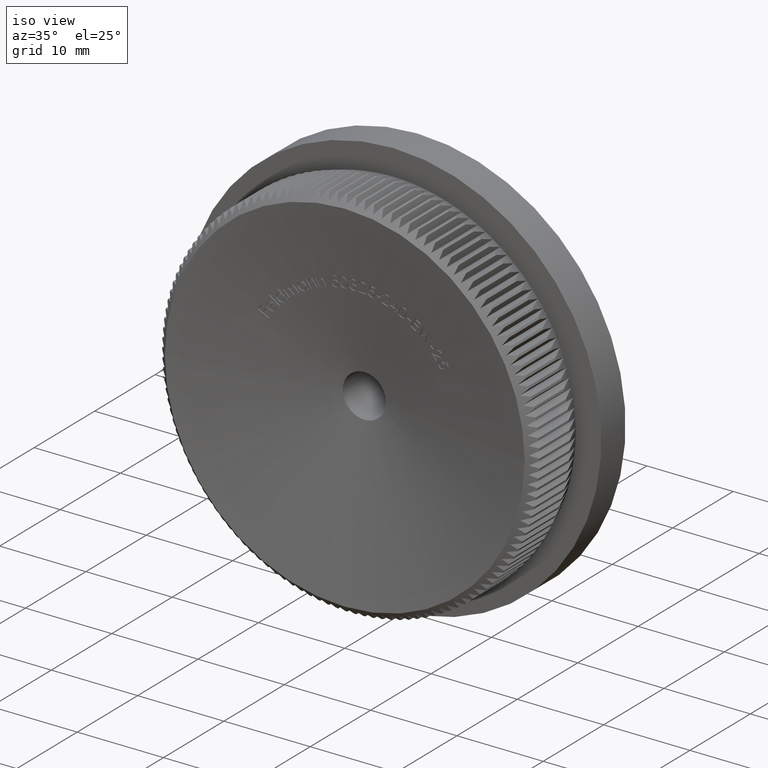
[diagram: clean part render]
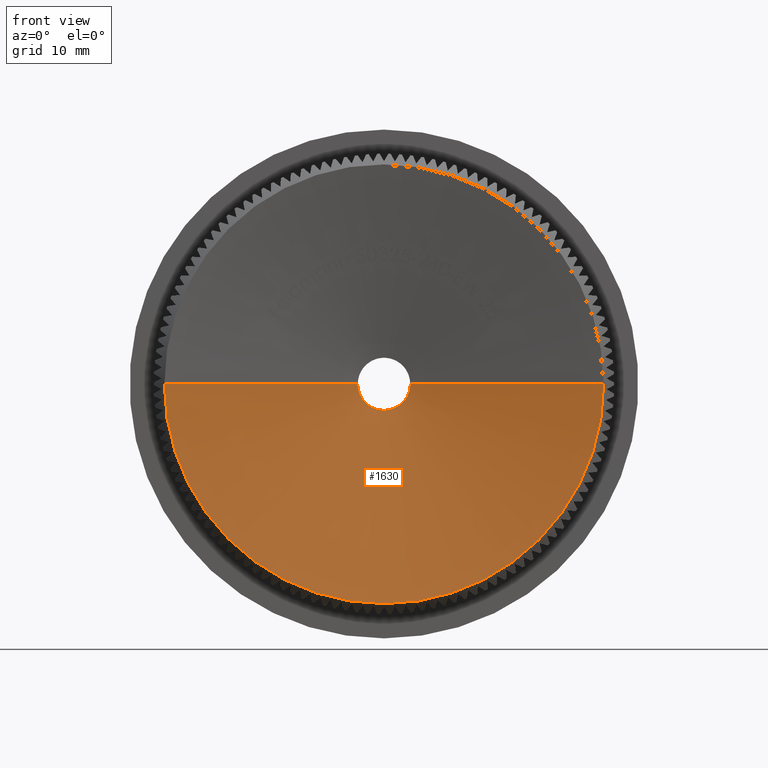
[diagram: tour spotlight — one face highlighted and labeled with its STEP entity id]
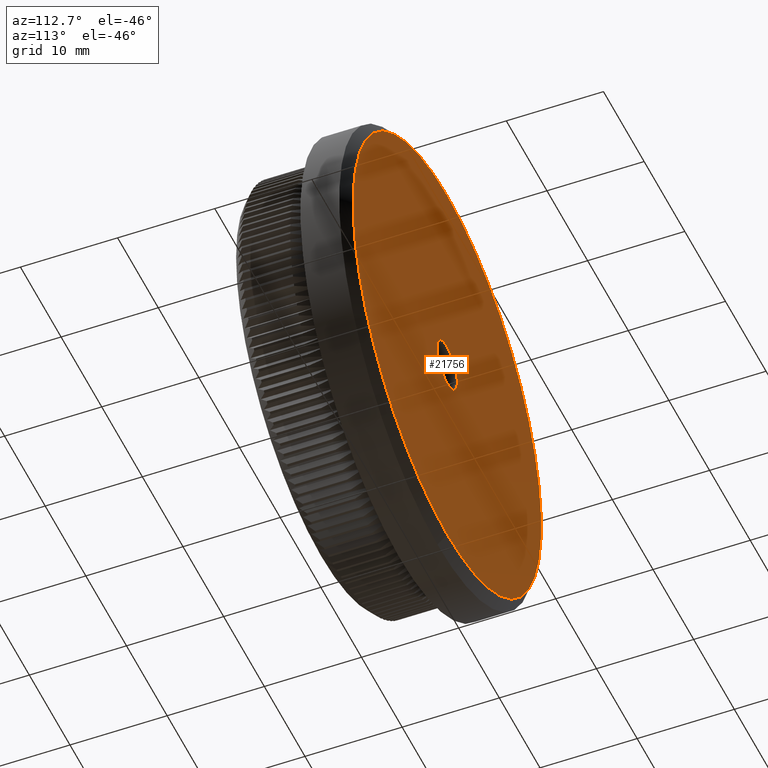
[diagram: tour spotlight — one face highlighted and labeled with its STEP entity id]
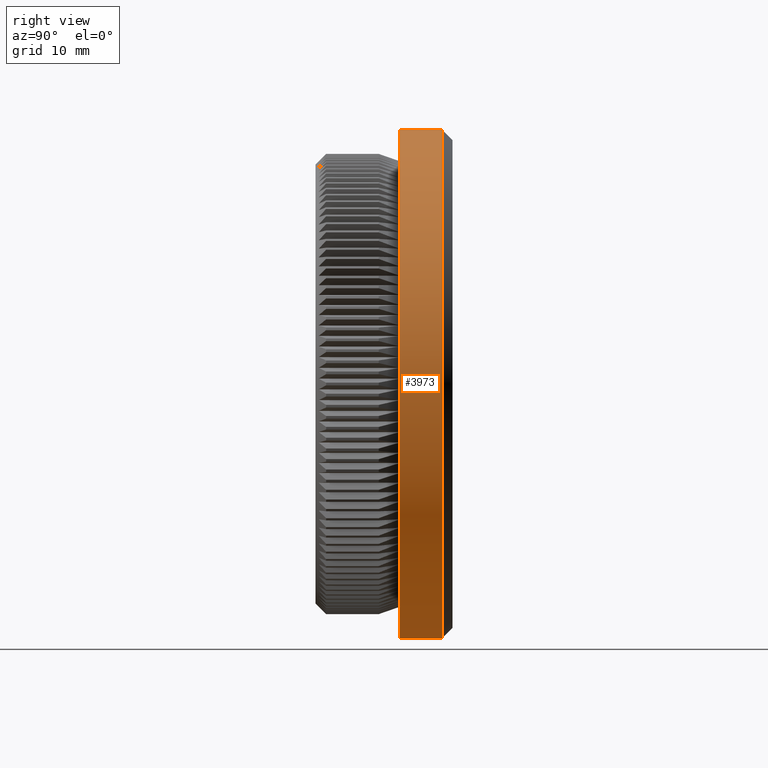
[diagram: tour spotlight — one face highlighted and labeled with its STEP entity id]
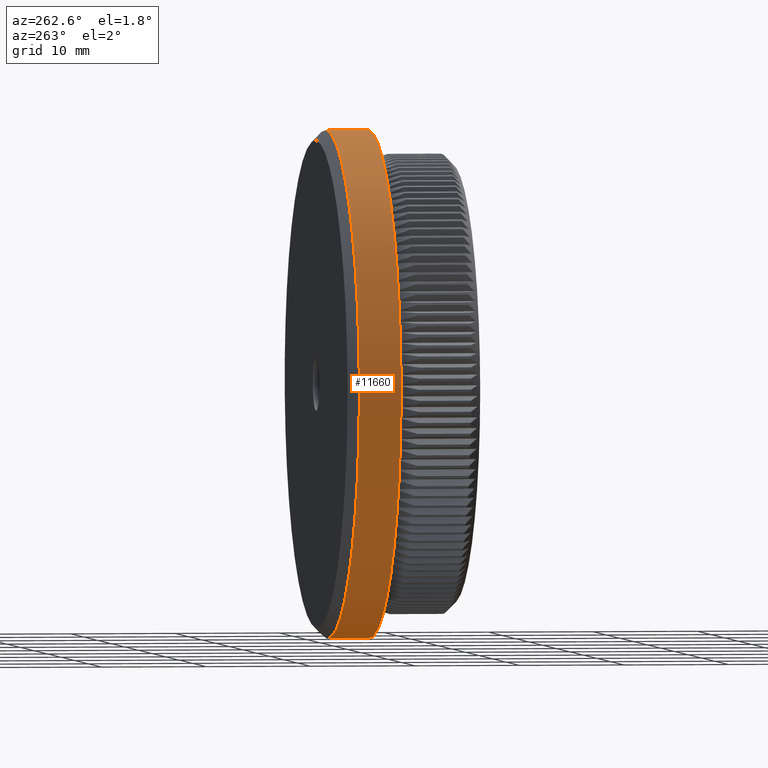
[diagram: tour spotlight — one face highlighted and labeled with its STEP entity id]
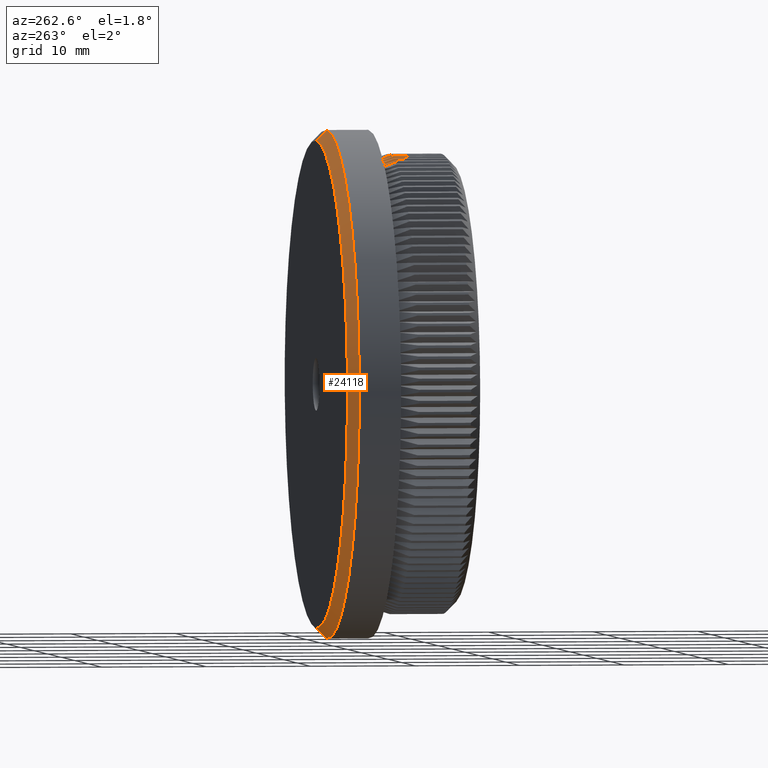
[diagram: tour spotlight — one face highlighted and labeled with its STEP entity id]
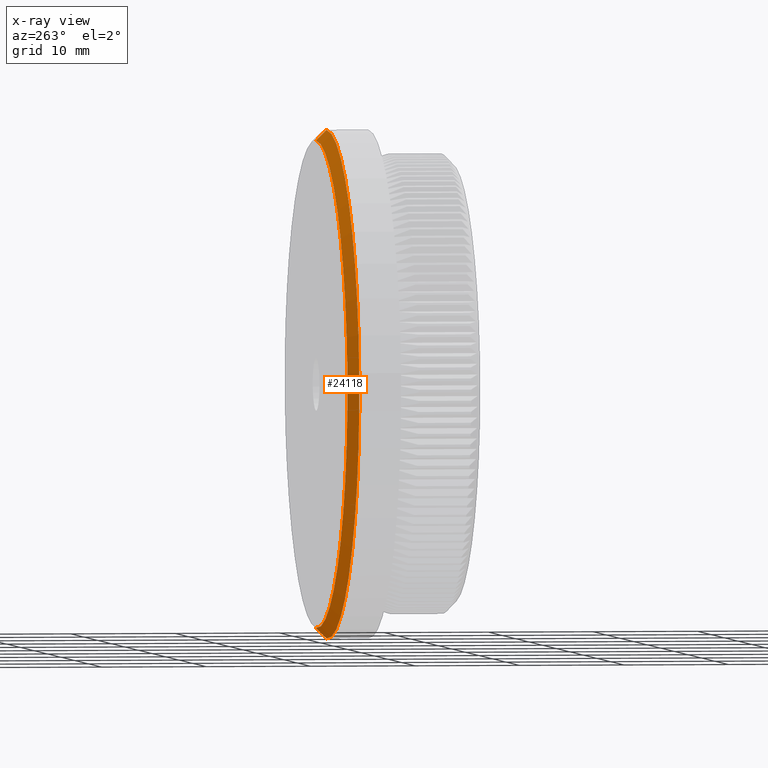
[diagram: x-ray of the same camera — body ghosted, this tour face saturated]
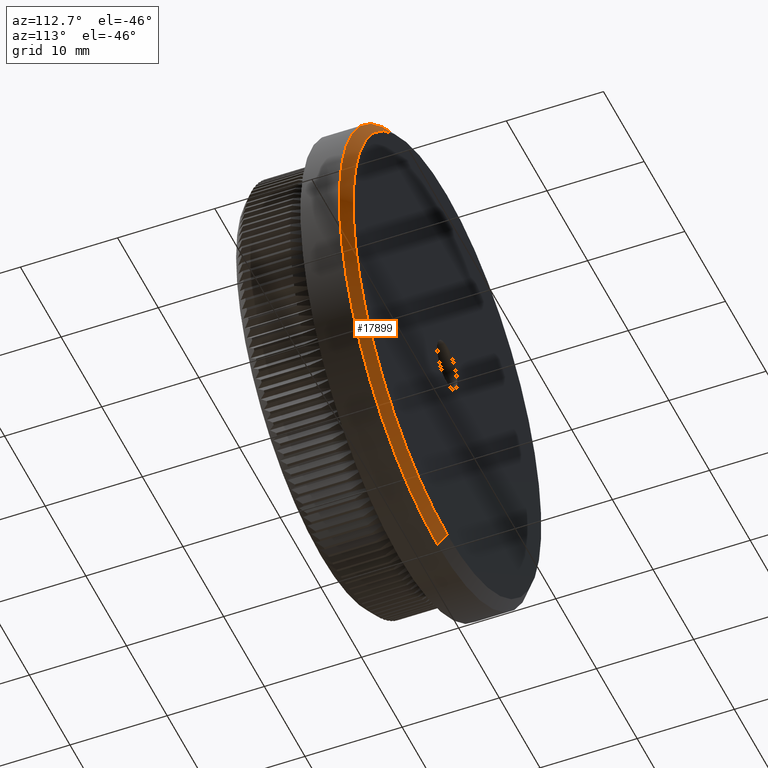
[diagram: tour spotlight — one face highlighted and labeled with its STEP entity id]
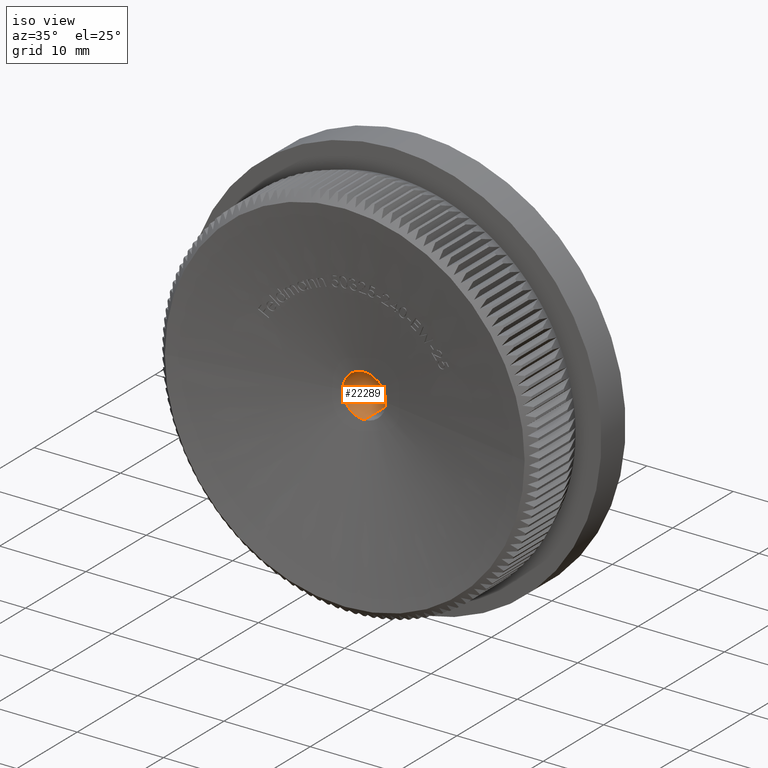
[diagram: tour spotlight — one face highlighted and labeled with its STEP entity id]
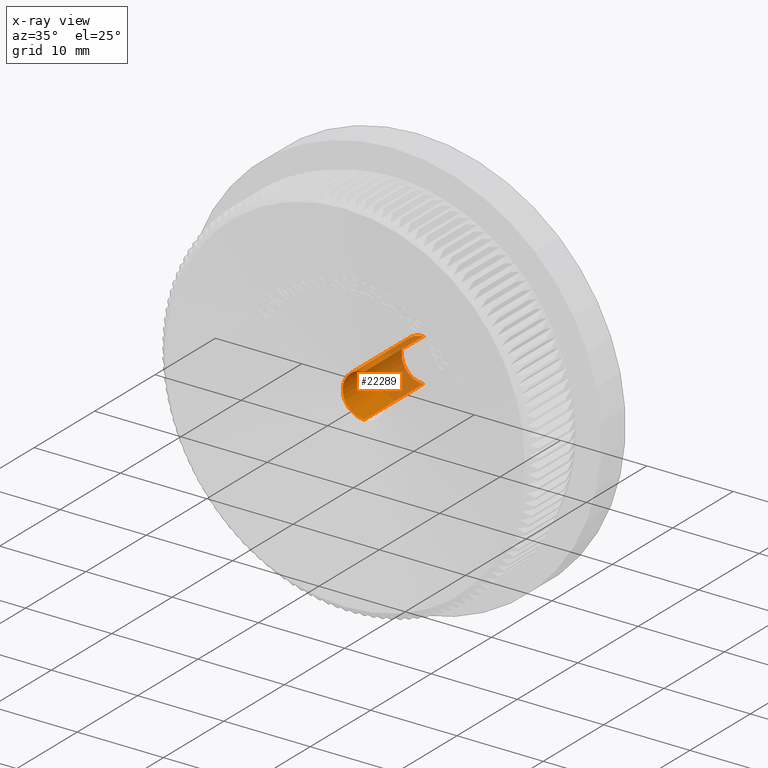
[diagram: x-ray of the same camera — body ghosted, this tour face saturated]
A machine part: a face-by-face anatomy tour. The part has 826 B-rep faces; the first image is the clean iso view, then the 7 largest visible faces are spotlighted one at a time (largest first), each with its STEP entity span.

Face 1 — front view, entity #1630. In plain terms, the highlighted conical surface has half-angle 80 deg.
Definition (entity closure, byte-faithful):
#1630 = ADVANCED_FACE ( 'NONE', ( #26621 ), #3690, .F. ) ;
#2535 = CARTESIAN_POINT ( 'NONE',  ( 1.776208359304720700E-033, 1.777418612876367700E-016, 0.0000000000000000000 ) ) ;
#2646 = DIRECTION ( 'NONE',  ( 1.000000000000000000, 0.0000000000000000000, 0.0000000000000000000 ) ) ;
#2802 = EDGE_CURVE ( 'NONE', #23438, #13845, #30609, .T. ) ;
#3690 = CONICAL_SURFACE ( 'NONE', #16309, 20.85000000000000100, 1.396263401595470700 ) ;
#4029 = DIRECTION ( 'NONE',  ( 0.9848077530122093500, -0.1736481776669234500, 0.0000000000000000000 ) ) ;
#4052 = CARTESIAN_POINT ( 'NONE',  ( -20.85000000000000100, 3.860998925539573200E-016, 2.553388576222231200E-015 ) ) ;
#4108 = EDGE_CURVE ( 'NONE', #7631, #13845, #23948, .T. ) ;
#4221 = LINE ( 'NONE', #4052, #19722 ) ;
#4229 = VERTEX_POINT ( 'NONE', #12942 ) ;
#5029 = CARTESIAN_POINT ( 'NONE',  ( 3.233396959077790000E-017, 3.235600096000199600, 0.0000000000000000000 ) ) ;
#5161 = CARTESIAN_POINT ( 'NONE',  ( -2.500000000000000000, 3.235600096000199600, 1.429775138004535100E-015 ) ) ;
#5622 = EDGE_LOOP ( 'NONE', ( #19343, #26536, #6200, #5984, #26006, #7048 ) ) ;
#5984 = ORIENTED_EDGE ( 'NONE', *, *, #30418, .T. ) ;
#6200 = ORIENTED_EDGE ( 'NONE', *, *, #22322, .T. ) ;
#7048 = ORIENTED_EDGE ( 'NONE', *, *, #2802, .F. ) ;
#7212 = CARTESIAN_POINT ( 'NONE',  ( 20.85000000000000100, -3.061616997868376200E-017, 0.0000000000000000000 ) ) ;
#7631 = VERTEX_POINT ( 'NONE', #11658 ) ;
#10499 = DIRECTION ( 'NONE',  ( 1.000000000000000000, -9.993190948024965400E-018, 0.0000000000000000000 ) ) ;
#11658 = CARTESIAN_POINT ( 'NONE',  ( 2.614620916179599600E-015, 1.777418612876367200E-016, -20.85000000000000100 ) ) ;
#12942 = CARTESIAN_POINT ( 'NONE',  ( -20.85000000000000100, 3.860998925539573200E-016, 2.553388576222231200E-015 ) ) ;
#12983 = AXIS2_PLACEMENT_3D ( 'NONE', #13977, #14267, #16443 ) ;
#13155 = DIRECTION ( 'NONE',  ( -9.993190948024965400E-018, -1.000000000000000000, -0.0000000000000000000 ) ) ;
#13845 = VERTEX_POINT ( 'NONE', #7212 ) ;
#13977 = CARTESIAN_POINT ( 'NONE',  ( 1.776208359304720700E-033, 1.777418612876367700E-016, 0.0000000000000000000 ) ) ;
#14267 = DIRECTION ( 'NONE',  ( -9.993190948024965400E-018, -1.000000000000000000, -0.0000000000000000000 ) ) ;
#15423 = CARTESIAN_POINT ( 'NONE',  ( 1.776208359304720700E-033, 1.777418612876367700E-016, 0.0000000000000000000 ) ) ;
#16309 = AXIS2_PLACEMENT_3D ( 'NONE', #15423, #13155, #10499 ) ;
#16443 = DIRECTION ( 'NONE',  ( 1.000000000000000000, -9.993190948024965400E-018, 0.0000000000000000000 ) ) ;
#17656 = CARTESIAN_POINT ( 'NONE',  ( 20.85000000000000100, -3.061616997868376200E-017, 0.0000000000000000000 ) ) ;
#17806 = VERTEX_POINT ( 'NONE', #21276 ) ;
#18351 = VERTEX_POINT ( 'NONE', #5161 ) ;
#19052 = DIRECTION ( 'NONE',  ( 1.000000000000000000, 0.0000000000000000000, 0.0000000000000000000 ) ) ;
#19343 = ORIENTED_EDGE ( 'NONE', *, *, #29610, .T. ) ;
#19722 = VECTOR ( 'NONE', #22937, 999.9999999999998900 ) ;
#20314 = EDGE_CURVE ( 'NONE', #17806, #18351, #30483, .T. ) ;
#20665 = AXIS2_PLACEMENT_3D ( 'NONE', #2535, #26262, #28618 ) ;
#20801 = CARTESIAN_POINT ( 'NONE',  ( 3.233396959077790000E-017, 3.235600096000199600, 0.0000000000000000000 ) ) ;
#21276 = CARTESIAN_POINT ( 'NONE',  ( 3.061616997868382600E-016, 3.235600096000199600, -2.500000000000000000 ) ) ;
#21640 = AXIS2_PLACEMENT_3D ( 'NONE', #20801, #23198, #19052 ) ;
#22322 = EDGE_CURVE ( 'NONE', #18351, #4229, #4221, .T. ) ;
#22937 = DIRECTION ( 'NONE',  ( -0.9848077530122093500, -0.1736481776669234500, 1.206041662501899300E-016 ) ) ;
#23198 = DIRECTION ( 'NONE',  ( 9.993190948024965400E-018, 1.000000000000000000, 0.0000000000000000000 ) ) ;
#23438 = VERTEX_POINT ( 'NONE', #25589 ) ;
#23556 = CIRCLE ( 'NONE', #21640, 2.500000000000000000 ) ;
#23900 = DIRECTION ( 'NONE',  ( 9.993190948024965400E-018, 1.000000000000000000, 0.0000000000000000000 ) ) ;
#23948 = CIRCLE ( 'NONE', #20665, 20.85000000000000100 ) ;
#24348 = VECTOR ( 'NONE', #4029, 999.9999999999998900 ) ;
#25589 = CARTESIAN_POINT ( 'NONE',  ( 2.500000000000000000, 3.235600096000199600, 0.0000000000000000000 ) ) ;
#26006 = ORIENTED_EDGE ( 'NONE', *, *, #4108, .T. ) ;
#26262 = DIRECTION ( 'NONE',  ( -9.993190948024965400E-018, -1.000000000000000000, -0.0000000000000000000 ) ) ;
#26306 = AXIS2_PLACEMENT_3D ( 'NONE', #5029, #23900, #2646 ) ;
#26536 = ORIENTED_EDGE ( 'NONE', *, *, #20314, .T. ) ;
#26621 = FACE_OUTER_BOUND ( 'NONE', #5622, .T. ) ;
#28618 = DIRECTION ( 'NONE',  ( 1.000000000000000000, -9.993190948024965400E-018, 0.0000000000000000000 ) ) ;
#28701 = CIRCLE ( 'NONE', #12983, 20.85000000000000100 ) ;
#29610 = EDGE_CURVE ( 'NONE', #23438, #17806, #23556, .T. ) ;
#30418 = EDGE_CURVE ( 'NONE', #4229, #7631, #28701, .T. ) ;
#30483 = CIRCLE ( 'NONE', #26306, 2.500000000000000000 ) ;
#30609 = LINE ( 'NONE', #17656, #24348 ) ;

Face 2 — auxiliary view, entity #21756. In plain terms, the highlighted planar face has unit normal (0, 1, 0).
Definition (entity closure, byte-faithful):
#541 = CARTESIAN_POINT ( 'NONE',  ( 0.0000000000000000000, 13.00000000000000000, 2.500000000000000000 ) ) ;
#1626 = CARTESIAN_POINT ( 'NONE',  ( 0.0000000000000000000, 13.00000000000000000, 0.0000000000000000000 ) ) ;
#2245 = EDGE_LOOP ( 'NONE', ( #17589, #28679 ) ) ;
#3957 = AXIS2_PLACEMENT_3D ( 'NONE', #1626, #25058, #25373 ) ;
#3977 = CARTESIAN_POINT ( 'NONE',  ( 0.0000000000000000000, 13.00000000000000000, 0.0000000000000000000 ) ) ;
#4023 = VERTEX_POINT ( 'NONE', #541 ) ;
#4251 = FACE_OUTER_BOUND ( 'NONE', #21339, .T. ) ;
#4469 = CIRCLE ( 'NONE', #8414, 23.14999999999999900 ) ;
#4847 = CIRCLE ( 'NONE', #19183, 2.500000000000000000 ) ;
#8414 = AXIS2_PLACEMENT_3D ( 'NONE', #9295, #9810, #28664 ) ;
#9295 = CARTESIAN_POINT ( 'NONE',  ( 0.0000000000000000000, 13.00000000000000000, 0.0000000000000000000 ) ) ;
#9810 = DIRECTION ( 'NONE',  ( 0.0000000000000000000, 1.000000000000000000, 0.0000000000000000000 ) ) ;
#10733 = CARTESIAN_POINT ( 'NONE',  ( 3.061616997868382600E-016, 13.00000000000000000, -2.500000000000000000 ) ) ;
#11772 = VERTEX_POINT ( 'NONE', #22528 ) ;
#11861 = DIRECTION ( 'NONE',  ( 0.0000000000000000000, 0.0000000000000000000, 1.000000000000000000 ) ) ;
#12144 = VERTEX_POINT ( 'NONE', #27443 ) ;
#12965 = DIRECTION ( 'NONE',  ( 0.0000000000000000000, 0.0000000000000000000, 1.000000000000000000 ) ) ;
#13297 = PLANE ( 'NONE',  #3957 ) ;
#14058 = EDGE_CURVE ( 'NONE', #11772, #12144, #4469, .T. ) ;
#14208 = CARTESIAN_POINT ( 'NONE',  ( 0.0000000000000000000, 13.00000000000000000, 0.0000000000000000000 ) ) ;
#14378 = ORIENTED_EDGE ( 'NONE', *, *, #18848, .T. ) ;
#14465 = EDGE_CURVE ( 'NONE', #20809, #4023, #15903, .T. ) ;
#15903 = CIRCLE ( 'NONE', #20845, 2.500000000000000000 ) ;
#17163 = AXIS2_PLACEMENT_3D ( 'NONE', #14208, #26071, #11861 ) ;
#17469 = ORIENTED_EDGE ( 'NONE', *, *, #14058, .T. ) ;
#17589 = ORIENTED_EDGE ( 'NONE', *, *, #25727, .F. ) ;
#18230 = DIRECTION ( 'NONE',  ( 0.0000000000000000000, 1.000000000000000000, 0.0000000000000000000 ) ) ;
#18432 = CARTESIAN_POINT ( 'NONE',  ( 0.0000000000000000000, 13.00000000000000000, 0.0000000000000000000 ) ) ;
#18848 = EDGE_CURVE ( 'NONE', #12144, #11772, #27335, .T. ) ;
#19183 = AXIS2_PLACEMENT_3D ( 'NONE', #18432, #18230, #20491 ) ;
#19361 = FACE_BOUND ( 'NONE', #2245, .T. ) ;
#19860 = DIRECTION ( 'NONE',  ( 0.0000000000000000000, 1.000000000000000000, 0.0000000000000000000 ) ) ;
#20491 = DIRECTION ( 'NONE',  ( 0.0000000000000000000, 0.0000000000000000000, 1.000000000000000000 ) ) ;
#20809 = VERTEX_POINT ( 'NONE', #10733 ) ;
#20845 = AXIS2_PLACEMENT_3D ( 'NONE', #3977, #19860, #12965 ) ;
#21339 = EDGE_LOOP ( 'NONE', ( #14378, #17469 ) ) ;
#21756 = ADVANCED_FACE ( 'NONE', ( #19361, #4251 ), #13297, .T. ) ;
#22528 = CARTESIAN_POINT ( 'NONE',  ( 2.896289679983490000E-015, 13.00000000000000000, 23.14999999999999900 ) ) ;
#25058 = DIRECTION ( 'NONE',  ( 0.0000000000000000000, 1.000000000000000000, 0.0000000000000000000 ) ) ;
#25373 = DIRECTION ( 'NONE',  ( 0.0000000000000000000, -0.0000000000000000000, 1.000000000000000000 ) ) ;
#25727 = EDGE_CURVE ( 'NONE', #4023, #20809, #4847, .T. ) ;
#26071 = DIRECTION ( 'NONE',  ( 0.0000000000000000000, 1.000000000000000000, 0.0000000000000000000 ) ) ;
#27335 = CIRCLE ( 'NONE', #17163, 23.14999999999999900 ) ;
#27443 = CARTESIAN_POINT ( 'NONE',  ( 0.0000000000000000000, 13.00000000000000000, -23.14999999999999900 ) ) ;
#28664 = DIRECTION ( 'NONE',  ( 0.0000000000000000000, 0.0000000000000000000, 1.000000000000000000 ) ) ;
#28679 = ORIENTED_EDGE ( 'NONE', *, *, #14465, .F. ) ;

Face 3 — right view, entity #3973. In plain terms, the highlighted cylindrical surface (partial cylindrical patch) has radius 24.15 mm, axis along (-0, -1, -0).
Definition (entity closure, byte-faithful):
#9 = DIRECTION ( 'NONE',  ( -0.0000000000000000000, -1.000000000000000000, -0.0000000000000000000 ) ) ;
#656 = CYLINDRICAL_SURFACE ( 'NONE', #19674, 24.14999999999999900 ) ;
#2111 = DIRECTION ( 'NONE',  ( 0.0000000000000000000, 0.0000000000000000000, -1.000000000000000000 ) ) ;
#2720 = VERTEX_POINT ( 'NONE', #25543 ) ;
#3568 = CARTESIAN_POINT ( 'NONE',  ( 0.0000000000000000000, 8.000000000000000000, 0.0000000000000000000 ) ) ;
#3645 = VECTOR ( 'NONE', #18437, 1000.000000000000000 ) ;
#3973 = ADVANCED_FACE ( 'NONE', ( #25447 ), #656, .T. ) ;
#7068 = CARTESIAN_POINT ( 'NONE',  ( 0.0000000000000000000, 11.99999999999999500, 0.0000000000000000000 ) ) ;
#8980 = EDGE_CURVE ( 'NONE', #2720, #12464, #25625, .T. ) ;
#11461 = CARTESIAN_POINT ( 'NONE',  ( 0.0000000000000000000, 0.0000000000000000000, -24.14999999999999900 ) ) ;
#12464 = VERTEX_POINT ( 'NONE', #21810 ) ;
#12666 = AXIS2_PLACEMENT_3D ( 'NONE', #7068, #9, #21579 ) ;
#12718 = AXIS2_PLACEMENT_3D ( 'NONE', #3568, #15737, #20262 ) ;
#13002 = CIRCLE ( 'NONE', #12718, 24.14999999999999900 ) ;
#15737 = DIRECTION ( 'NONE',  ( -0.0000000000000000000, -1.000000000000000000, -0.0000000000000000000 ) ) ;
#16465 = CIRCLE ( 'NONE', #12666, 24.14999999999999900 ) ;
#16546 = EDGE_CURVE ( 'NONE', #18240, #18523, #16950, .T. ) ;
#16950 = LINE ( 'NONE', #11461, #3645 ) ;
#18240 = VERTEX_POINT ( 'NONE', #28473 ) ;
#18437 = DIRECTION ( 'NONE',  ( -0.0000000000000000000, -1.000000000000000000, -0.0000000000000000000 ) ) ;
#18523 = VERTEX_POINT ( 'NONE', #20085 ) ;
#19273 = ORIENTED_EDGE ( 'NONE', *, *, #20681, .T. ) ;
#19482 = EDGE_LOOP ( 'NONE', ( #19273, #20294, #28549, #28186 ) ) ;
#19674 = AXIS2_PLACEMENT_3D ( 'NONE', #25654, #30355, #2111 ) ;
#20085 = CARTESIAN_POINT ( 'NONE',  ( 0.0000000000000000000, 8.000000000000000000, -24.14999999999999900 ) ) ;
#20262 = DIRECTION ( 'NONE',  ( 0.0000000000000000000, 0.0000000000000000000, -1.000000000000000000 ) ) ;
#20285 = DIRECTION ( 'NONE',  ( -0.0000000000000000000, -1.000000000000000000, -0.0000000000000000000 ) ) ;
#20294 = ORIENTED_EDGE ( 'NONE', *, *, #8980, .T. ) ;
#20598 = CARTESIAN_POINT ( 'NONE',  ( 2.957522019940857900E-015, 0.0000000000000000000, 24.14999999999999900 ) ) ;
#20681 = EDGE_CURVE ( 'NONE', #18240, #2720, #16465, .T. ) ;
#21579 = DIRECTION ( 'NONE',  ( 0.0000000000000000000, 0.0000000000000000000, 1.000000000000000000 ) ) ;
#21810 = CARTESIAN_POINT ( 'NONE',  ( 2.957522019940857900E-015, 8.000000000000000000, 24.14999999999999900 ) ) ;
#24522 = VECTOR ( 'NONE', #20285, 1000.000000000000000 ) ;
#25447 = FACE_OUTER_BOUND ( 'NONE', #19482, .T. ) ;
#25543 = CARTESIAN_POINT ( 'NONE',  ( 2.957522019940857900E-015, 11.99999999999999500, 24.14999999999999900 ) ) ;
#25625 = LINE ( 'NONE', #20598, #24522 ) ;
#25654 = CARTESIAN_POINT ( 'NONE',  ( 0.0000000000000000000, 0.0000000000000000000, 0.0000000000000000000 ) ) ;
#25960 = EDGE_CURVE ( 'NONE', #18523, #12464, #13002, .T. ) ;
#28186 = ORIENTED_EDGE ( 'NONE', *, *, #16546, .F. ) ;
#28473 = CARTESIAN_POINT ( 'NONE',  ( 0.0000000000000000000, 11.99999999999999500, -24.14999999999999900 ) ) ;
#28549 = ORIENTED_EDGE ( 'NONE', *, *, #25960, .F. ) ;
#30355 = DIRECTION ( 'NONE',  ( -0.0000000000000000000, -1.000000000000000000, -0.0000000000000000000 ) ) ;

Face 4 — auxiliary view, entity #11660. In plain terms, the highlighted cylindrical surface (partial cylindrical patch) has radius 24.15 mm, axis along (-0, -1, -0).
Definition (entity closure, byte-faithful):
#754 = DIRECTION ( 'NONE',  ( -0.0000000000000000000, -1.000000000000000000, -0.0000000000000000000 ) ) ;
#2720 = VERTEX_POINT ( 'NONE', #25543 ) ;
#2991 = DIRECTION ( 'NONE',  ( -0.0000000000000000000, -1.000000000000000000, -0.0000000000000000000 ) ) ;
#3645 = VECTOR ( 'NONE', #18437, 1000.000000000000000 ) ;
#7062 = AXIS2_PLACEMENT_3D ( 'NONE', #21560, #2991, #26627 ) ;
#8564 = FACE_OUTER_BOUND ( 'NONE', #23164, .T. ) ;
#8980 = EDGE_CURVE ( 'NONE', #2720, #12464, #25625, .T. ) ;
#9051 = ORIENTED_EDGE ( 'NONE', *, *, #16546, .T. ) ;
#9480 = CARTESIAN_POINT ( 'NONE',  ( 0.0000000000000000000, 8.000000000000000000, 0.0000000000000000000 ) ) ;
#11110 = CIRCLE ( 'NONE', #16731, 24.14999999999999900 ) ;
#11461 = CARTESIAN_POINT ( 'NONE',  ( 0.0000000000000000000, 0.0000000000000000000, -24.14999999999999900 ) ) ;
#11530 = CYLINDRICAL_SURFACE ( 'NONE', #27340, 24.14999999999999900 ) ;
#11660 = ADVANCED_FACE ( 'NONE', ( #8564 ), #11530, .T. ) ;
#11979 = DIRECTION ( 'NONE',  ( 0.0000000000000000000, 0.0000000000000000000, -1.000000000000000000 ) ) ;
#12464 = VERTEX_POINT ( 'NONE', #21810 ) ;
#15270 = EDGE_CURVE ( 'NONE', #12464, #18523, #11110, .T. ) ;
#16225 = EDGE_CURVE ( 'NONE', #2720, #18240, #17677, .T. ) ;
#16546 = EDGE_CURVE ( 'NONE', #18240, #18523, #16950, .T. ) ;
#16731 = AXIS2_PLACEMENT_3D ( 'NONE', #9480, #26086, #11979 ) ;
#16950 = LINE ( 'NONE', #11461, #3645 ) ;
#17280 = DIRECTION ( 'NONE',  ( 0.0000000000000000000, 0.0000000000000000000, -1.000000000000000000 ) ) ;
#17677 = CIRCLE ( 'NONE', #7062, 24.14999999999999900 ) ;
#18240 = VERTEX_POINT ( 'NONE', #28473 ) ;
#18437 = DIRECTION ( 'NONE',  ( -0.0000000000000000000, -1.000000000000000000, -0.0000000000000000000 ) ) ;
#18523 = VERTEX_POINT ( 'NONE', #20085 ) ;
#20085 = CARTESIAN_POINT ( 'NONE',  ( 0.0000000000000000000, 8.000000000000000000, -24.14999999999999900 ) ) ;
#20285 = DIRECTION ( 'NONE',  ( -0.0000000000000000000, -1.000000000000000000, -0.0000000000000000000 ) ) ;
#20598 = CARTESIAN_POINT ( 'NONE',  ( 2.957522019940857900E-015, 0.0000000000000000000, 24.14999999999999900 ) ) ;
#21560 = CARTESIAN_POINT ( 'NONE',  ( 0.0000000000000000000, 11.99999999999999500, 0.0000000000000000000 ) ) ;
#21810 = CARTESIAN_POINT ( 'NONE',  ( 2.957522019940857900E-015, 8.000000000000000000, 24.14999999999999900 ) ) ;
#23164 = EDGE_LOOP ( 'NONE', ( #26602, #26863, #9051, #26066 ) ) ;
#24522 = VECTOR ( 'NONE', #20285, 1000.000000000000000 ) ;
#25543 = CARTESIAN_POINT ( 'NONE',  ( 2.957522019940857900E-015, 11.99999999999999500, 24.14999999999999900 ) ) ;
#25625 = LINE ( 'NONE', #20598, #24522 ) ;
#26066 = ORIENTED_EDGE ( 'NONE', *, *, #15270, .F. ) ;
#26086 = DIRECTION ( 'NONE',  ( -0.0000000000000000000, -1.000000000000000000, -0.0000000000000000000 ) ) ;
#26602 = ORIENTED_EDGE ( 'NONE', *, *, #8980, .F. ) ;
#26627 = DIRECTION ( 'NONE',  ( 0.0000000000000000000, 0.0000000000000000000, 1.000000000000000000 ) ) ;
#26863 = ORIENTED_EDGE ( 'NONE', *, *, #16225, .T. ) ;
#27340 = AXIS2_PLACEMENT_3D ( 'NONE', #29020, #754, #17280 ) ;
#28473 = CARTESIAN_POINT ( 'NONE',  ( 0.0000000000000000000, 11.99999999999999500, -24.14999999999999900 ) ) ;
#29020 = CARTESIAN_POINT ( 'NONE',  ( 0.0000000000000000000, 0.0000000000000000000, 0.0000000000000000000 ) ) ;

Face 5 — auxiliary view, entity #24118. An x-ray twin of the same camera follows (body ghosted, this face saturated) — the face is partly hidden behind the body. In plain terms, the highlighted conical surface has half-angle 45 deg.
Definition (entity closure, byte-faithful):
#2141 = VECTOR ( 'NONE', #12243, 1000.000000000000000 ) ;
#2720 = VERTEX_POINT ( 'NONE', #25543 ) ;
#2991 = DIRECTION ( 'NONE',  ( -0.0000000000000000000, -1.000000000000000000, -0.0000000000000000000 ) ) ;
#3426 = FACE_OUTER_BOUND ( 'NONE', #8754, .T. ) ;
#3487 = ORIENTED_EDGE ( 'NONE', *, *, #18848, .F. ) ;
#6204 = LINE ( 'NONE', #10073, #2141 ) ;
#7062 = AXIS2_PLACEMENT_3D ( 'NONE', #21560, #2991, #26627 ) ;
#8754 = EDGE_LOOP ( 'NONE', ( #26974, #3487, #11868, #28476 ) ) ;
#10073 = CARTESIAN_POINT ( 'NONE',  ( 2.957522019940857900E-015, 11.99999999999999500, 24.14999999999999900 ) ) ;
#10762 = EDGE_CURVE ( 'NONE', #12144, #18240, #26693, .T. ) ;
#11772 = VERTEX_POINT ( 'NONE', #22528 ) ;
#11861 = DIRECTION ( 'NONE',  ( 0.0000000000000000000, 0.0000000000000000000, 1.000000000000000000 ) ) ;
#11868 = ORIENTED_EDGE ( 'NONE', *, *, #10762, .T. ) ;
#12144 = VERTEX_POINT ( 'NONE', #27443 ) ;
#12243 = DIRECTION ( 'NONE',  ( 8.659560562354918100E-017, -0.7071067811865487900, 0.7071067811865463500 ) ) ;
#13065 = AXIS2_PLACEMENT_3D ( 'NONE', #24819, #13266, #15528 ) ;
#13266 = DIRECTION ( 'NONE',  ( -0.0000000000000000000, -1.000000000000000000, -0.0000000000000000000 ) ) ;
#14208 = CARTESIAN_POINT ( 'NONE',  ( 0.0000000000000000000, 13.00000000000000000, 0.0000000000000000000 ) ) ;
#15528 = DIRECTION ( 'NONE',  ( 0.0000000000000000000, 0.0000000000000000000, -1.000000000000000000 ) ) ;
#16225 = EDGE_CURVE ( 'NONE', #2720, #18240, #17677, .T. ) ;
#17163 = AXIS2_PLACEMENT_3D ( 'NONE', #14208, #26071, #11861 ) ;
#17677 = CIRCLE ( 'NONE', #7062, 24.14999999999999900 ) ;
#18174 = VECTOR ( 'NONE', #21718, 1000.000000000000000 ) ;
#18240 = VERTEX_POINT ( 'NONE', #28473 ) ;
#18848 = EDGE_CURVE ( 'NONE', #12144, #11772, #27335, .T. ) ;
#21560 = CARTESIAN_POINT ( 'NONE',  ( 0.0000000000000000000, 11.99999999999999500, 0.0000000000000000000 ) ) ;
#21718 = DIRECTION ( 'NONE',  ( 0.0000000000000000000, -0.7071067811865487900, -0.7071067811865463500 ) ) ;
#22528 = CARTESIAN_POINT ( 'NONE',  ( 2.896289679983490000E-015, 13.00000000000000000, 23.14999999999999900 ) ) ;
#24118 = ADVANCED_FACE ( 'NONE', ( #3426 ), #29265, .T. ) ;
#24819 = CARTESIAN_POINT ( 'NONE',  ( 0.0000000000000000000, 11.99999999999999500, 0.0000000000000000000 ) ) ;
#25543 = CARTESIAN_POINT ( 'NONE',  ( 2.957522019940857900E-015, 11.99999999999999500, 24.14999999999999900 ) ) ;
#26071 = DIRECTION ( 'NONE',  ( 0.0000000000000000000, 1.000000000000000000, 0.0000000000000000000 ) ) ;
#26627 = DIRECTION ( 'NONE',  ( 0.0000000000000000000, 0.0000000000000000000, 1.000000000000000000 ) ) ;
#26684 = CARTESIAN_POINT ( 'NONE',  ( 0.0000000000000000000, 11.99999999999999500, -24.14999999999999900 ) ) ;
#26693 = LINE ( 'NONE', #26684, #18174 ) ;
#26974 = ORIENTED_EDGE ( 'NONE', *, *, #28611, .F. ) ;
#27335 = CIRCLE ( 'NONE', #17163, 23.14999999999999900 ) ;
#27443 = CARTESIAN_POINT ( 'NONE',  ( 0.0000000000000000000, 13.00000000000000000, -23.14999999999999900 ) ) ;
#28473 = CARTESIAN_POINT ( 'NONE',  ( 0.0000000000000000000, 11.99999999999999500, -24.14999999999999900 ) ) ;
#28476 = ORIENTED_EDGE ( 'NONE', *, *, #16225, .F. ) ;
#28611 = EDGE_CURVE ( 'NONE', #11772, #2720, #6204, .T. ) ;
#29265 = CONICAL_SURFACE ( 'NONE', #13065, 24.14999999999999900, 0.7853981633974466100 ) ;

Face 6 — auxiliary view, entity #17899. In plain terms, the highlighted conical surface has half-angle 45 deg.
Definition (entity closure, byte-faithful):
#9 = DIRECTION ( 'NONE',  ( -0.0000000000000000000, -1.000000000000000000, -0.0000000000000000000 ) ) ;
#2141 = VECTOR ( 'NONE', #12243, 1000.000000000000000 ) ;
#2720 = VERTEX_POINT ( 'NONE', #25543 ) ;
#3009 = DIRECTION ( 'NONE',  ( -0.0000000000000000000, -1.000000000000000000, -0.0000000000000000000 ) ) ;
#4469 = CIRCLE ( 'NONE', #8414, 23.14999999999999900 ) ;
#4691 = AXIS2_PLACEMENT_3D ( 'NONE', #28901, #3009, #19500 ) ;
#4722 = CONICAL_SURFACE ( 'NONE', #4691, 24.14999999999999900, 0.7853981633974466100 ) ;
#6204 = LINE ( 'NONE', #10073, #2141 ) ;
#7068 = CARTESIAN_POINT ( 'NONE',  ( 0.0000000000000000000, 11.99999999999999500, 0.0000000000000000000 ) ) ;
#8414 = AXIS2_PLACEMENT_3D ( 'NONE', #9295, #9810, #28664 ) ;
#9232 = ORIENTED_EDGE ( 'NONE', *, *, #14058, .F. ) ;
#9295 = CARTESIAN_POINT ( 'NONE',  ( 0.0000000000000000000, 13.00000000000000000, 0.0000000000000000000 ) ) ;
#9810 = DIRECTION ( 'NONE',  ( 0.0000000000000000000, 1.000000000000000000, 0.0000000000000000000 ) ) ;
#10073 = CARTESIAN_POINT ( 'NONE',  ( 2.957522019940857900E-015, 11.99999999999999500, 24.14999999999999900 ) ) ;
#10246 = EDGE_LOOP ( 'NONE', ( #9232, #26695, #13724, #29588 ) ) ;
#10762 = EDGE_CURVE ( 'NONE', #12144, #18240, #26693, .T. ) ;
#11772 = VERTEX_POINT ( 'NONE', #22528 ) ;
#12144 = VERTEX_POINT ( 'NONE', #27443 ) ;
#12243 = DIRECTION ( 'NONE',  ( 8.659560562354918100E-017, -0.7071067811865487900, 0.7071067811865463500 ) ) ;
#12666 = AXIS2_PLACEMENT_3D ( 'NONE', #7068, #9, #21579 ) ;
#13724 = ORIENTED_EDGE ( 'NONE', *, *, #20681, .F. ) ;
#14058 = EDGE_CURVE ( 'NONE', #11772, #12144, #4469, .T. ) ;
#16465 = CIRCLE ( 'NONE', #12666, 24.14999999999999900 ) ;
#17899 = ADVANCED_FACE ( 'NONE', ( #22800 ), #4722, .T. ) ;
#18174 = VECTOR ( 'NONE', #21718, 1000.000000000000000 ) ;
#18240 = VERTEX_POINT ( 'NONE', #28473 ) ;
#19500 = DIRECTION ( 'NONE',  ( 0.0000000000000000000, 0.0000000000000000000, -1.000000000000000000 ) ) ;
#20681 = EDGE_CURVE ( 'NONE', #18240, #2720, #16465, .T. ) ;
#21579 = DIRECTION ( 'NONE',  ( 0.0000000000000000000, 0.0000000000000000000, 1.000000000000000000 ) ) ;
#21718 = DIRECTION ( 'NONE',  ( 0.0000000000000000000, -0.7071067811865487900, -0.7071067811865463500 ) ) ;
#22528 = CARTESIAN_POINT ( 'NONE',  ( 2.896289679983490000E-015, 13.00000000000000000, 23.14999999999999900 ) ) ;
#22800 = FACE_OUTER_BOUND ( 'NONE', #10246, .T. ) ;
#25543 = CARTESIAN_POINT ( 'NONE',  ( 2.957522019940857900E-015, 11.99999999999999500, 24.14999999999999900 ) ) ;
#26684 = CARTESIAN_POINT ( 'NONE',  ( 0.0000000000000000000, 11.99999999999999500, -24.14999999999999900 ) ) ;
#26693 = LINE ( 'NONE', #26684, #18174 ) ;
#26695 = ORIENTED_EDGE ( 'NONE', *, *, #28611, .T. ) ;
#27443 = CARTESIAN_POINT ( 'NONE',  ( 0.0000000000000000000, 13.00000000000000000, -23.14999999999999900 ) ) ;
#28473 = CARTESIAN_POINT ( 'NONE',  ( 0.0000000000000000000, 11.99999999999999500, -24.14999999999999900 ) ) ;
#28611 = EDGE_CURVE ( 'NONE', #11772, #2720, #6204, .T. ) ;
#28664 = DIRECTION ( 'NONE',  ( 0.0000000000000000000, 0.0000000000000000000, 1.000000000000000000 ) ) ;
#28901 = CARTESIAN_POINT ( 'NONE',  ( 0.0000000000000000000, 11.99999999999999500, 0.0000000000000000000 ) ) ;
#29588 = ORIENTED_EDGE ( 'NONE', *, *, #10762, .F. ) ;

Face 7 — iso view, entity #22289. An x-ray twin of the same camera follows (body ghosted, this face saturated) — the face is partly hidden behind the body. In plain terms, the highlighted cylindrical surface (edge-blend (fillet) strip) has radius 2.5 mm, axis along (-0, 1, -0).
Definition (entity closure, byte-faithful):
#541 = CARTESIAN_POINT ( 'NONE',  ( 0.0000000000000000000, 13.00000000000000000, 2.500000000000000000 ) ) ;
#706 = VERTEX_POINT ( 'NONE', #13219 ) ;
#1164 = VECTOR ( 'NONE', #6903, 1000.000000000000000 ) ;
#2646 = DIRECTION ( 'NONE',  ( 1.000000000000000000, 0.0000000000000000000, 0.0000000000000000000 ) ) ;
#3977 = CARTESIAN_POINT ( 'NONE',  ( 0.0000000000000000000, 13.00000000000000000, 0.0000000000000000000 ) ) ;
#4023 = VERTEX_POINT ( 'NONE', #541 ) ;
#4137 = AXIS2_PLACEMENT_3D ( 'NONE', #8719, #15921, #4256 ) ;
#4256 = DIRECTION ( 'NONE',  ( 0.0000000000000000000, 0.0000000000000000000, 1.000000000000000000 ) ) ;
#4328 = DIRECTION ( 'NONE',  ( -0.0000000000000000000, 1.000000000000000000, -0.0000000000000000000 ) ) ;
#5029 = CARTESIAN_POINT ( 'NONE',  ( 3.233396959077790000E-017, 3.235600096000199600, 0.0000000000000000000 ) ) ;
#5068 = CIRCLE ( 'NONE', #27465, 2.500000000000000000 ) ;
#5161 = CARTESIAN_POINT ( 'NONE',  ( -2.500000000000000000, 3.235600096000199600, 1.429775138004535100E-015 ) ) ;
#6217 = EDGE_LOOP ( 'NONE', ( #28975, #14370, #25221, #20261, #18471 ) ) ;
#6903 = DIRECTION ( 'NONE',  ( -0.0000000000000000000, 1.000000000000000000, -0.0000000000000000000 ) ) ;
#8719 = CARTESIAN_POINT ( 'NONE',  ( 0.0000000000000000000, 0.0000000000000000000, 0.0000000000000000000 ) ) ;
#9923 = CARTESIAN_POINT ( 'NONE',  ( 3.233396959077790000E-017, 3.235600096000199600, 0.0000000000000000000 ) ) ;
#10733 = CARTESIAN_POINT ( 'NONE',  ( 3.061616997868382600E-016, 13.00000000000000000, -2.500000000000000000 ) ) ;
#11659 = FACE_OUTER_BOUND ( 'NONE', #6217, .T. ) ;
#12095 = DIRECTION ( 'NONE',  ( 1.000000000000000000, 0.0000000000000000000, 0.0000000000000000000 ) ) ;
#12965 = DIRECTION ( 'NONE',  ( 0.0000000000000000000, 0.0000000000000000000, 1.000000000000000000 ) ) ;
#13219 = CARTESIAN_POINT ( 'NONE',  ( 0.0000000000000000000, 3.235600096000199600, 2.500000000000000000 ) ) ;
#13259 = EDGE_CURVE ( 'NONE', #17806, #20809, #28502, .T. ) ;
#14370 = ORIENTED_EDGE ( 'NONE', *, *, #13259, .T. ) ;
#14465 = EDGE_CURVE ( 'NONE', #20809, #4023, #15903, .T. ) ;
#15756 = VECTOR ( 'NONE', #4328, 1000.000000000000000 ) ;
#15903 = CIRCLE ( 'NONE', #20845, 2.500000000000000000 ) ;
#15921 = DIRECTION ( 'NONE',  ( -0.0000000000000000000, 1.000000000000000000, -0.0000000000000000000 ) ) ;
#17806 = VERTEX_POINT ( 'NONE', #21276 ) ;
#18121 = EDGE_CURVE ( 'NONE', #706, #4023, #22773, .T. ) ;
#18139 = CARTESIAN_POINT ( 'NONE',  ( 3.061616997868382600E-016, 0.0000000000000000000, -2.500000000000000000 ) ) ;
#18349 = CARTESIAN_POINT ( 'NONE',  ( 0.0000000000000000000, 0.0000000000000000000, 2.500000000000000000 ) ) ;
#18351 = VERTEX_POINT ( 'NONE', #5161 ) ;
#18471 = ORIENTED_EDGE ( 'NONE', *, *, #19835, .F. ) ;
#19266 = DIRECTION ( 'NONE',  ( 9.993190948024965400E-018, 1.000000000000000000, 0.0000000000000000000 ) ) ;
#19835 = EDGE_CURVE ( 'NONE', #18351, #706, #5068, .T. ) ;
#19860 = DIRECTION ( 'NONE',  ( 0.0000000000000000000, 1.000000000000000000, 0.0000000000000000000 ) ) ;
#20261 = ORIENTED_EDGE ( 'NONE', *, *, #18121, .F. ) ;
#20314 = EDGE_CURVE ( 'NONE', #17806, #18351, #30483, .T. ) ;
#20809 = VERTEX_POINT ( 'NONE', #10733 ) ;
#20845 = AXIS2_PLACEMENT_3D ( 'NONE', #3977, #19860, #12965 ) ;
#21276 = CARTESIAN_POINT ( 'NONE',  ( 3.061616997868382600E-016, 3.235600096000199600, -2.500000000000000000 ) ) ;
#22289 = ADVANCED_FACE ( 'NONE', ( #11659 ), #23811, .F. ) ;
#22773 = LINE ( 'NONE', #18349, #15756 ) ;
#23811 = CYLINDRICAL_SURFACE ( 'NONE', #4137, 2.500000000000000000 ) ;
#23900 = DIRECTION ( 'NONE',  ( 9.993190948024965400E-018, 1.000000000000000000, 0.0000000000000000000 ) ) ;
#25221 = ORIENTED_EDGE ( 'NONE', *, *, #14465, .T. ) ;
#26306 = AXIS2_PLACEMENT_3D ( 'NONE', #5029, #23900, #2646 ) ;
#27465 = AXIS2_PLACEMENT_3D ( 'NONE', #9923, #19266, #12095 ) ;
#28502 = LINE ( 'NONE', #18139, #1164 ) ;
#28975 = ORIENTED_EDGE ( 'NONE', *, *, #20314, .F. ) ;
#30483 = CIRCLE ( 'NONE', #26306, 2.500000000000000000 ) ;